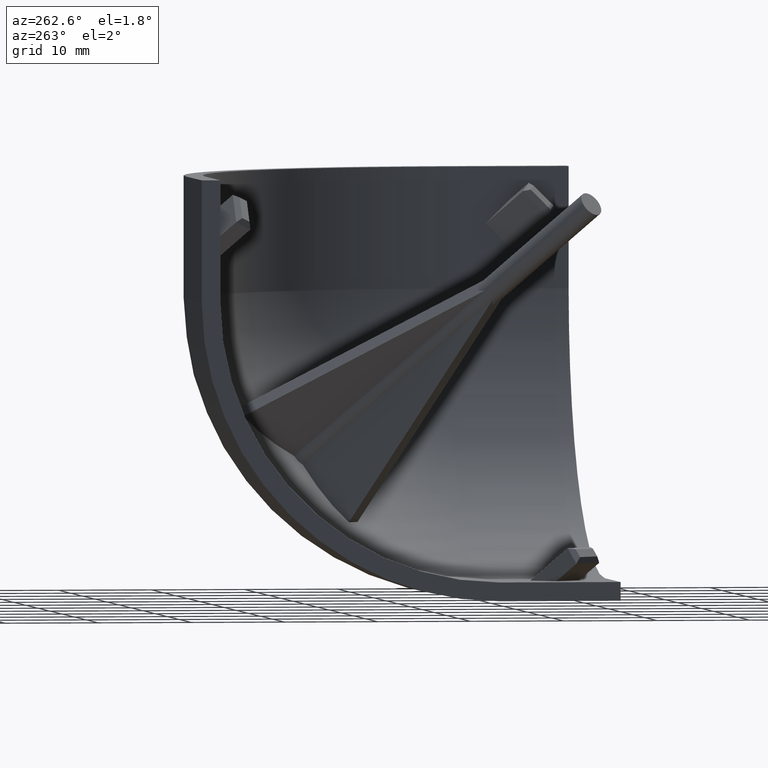
[diagram: clean part render]
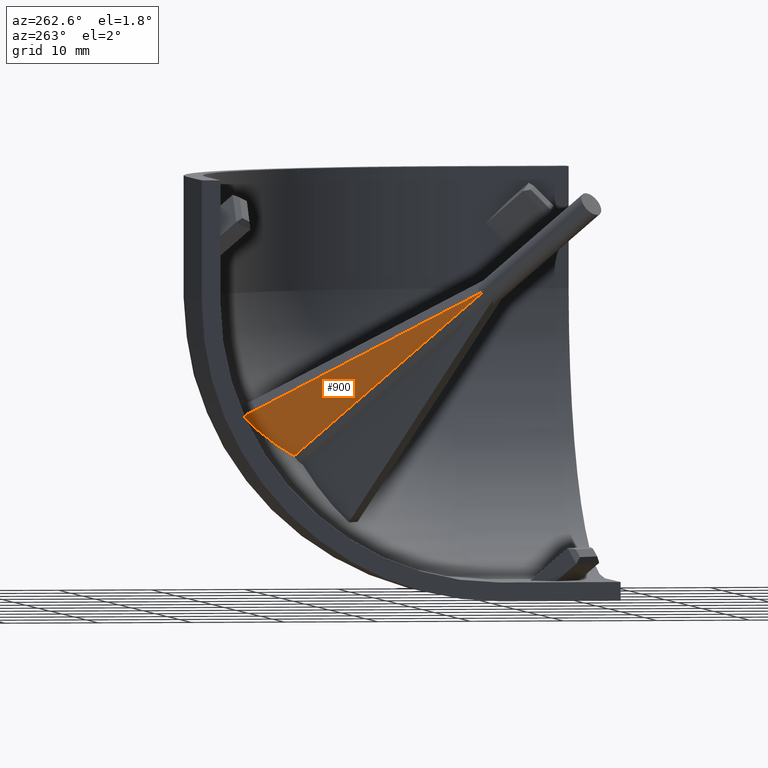
[diagram: same view with one face highlighted and labeled with its STEP entity id]
A machine part, auxiliary view. The second image highlights one B-rep face of the part: STEP entity #900.
In plain terms, the highlighted planar face has unit normal (0.7071, -0, 0.7071).
Its self-contained STEP definition (entity closure, byte-faithful):
#30=PLANE('',#985);
#72=LINE('',#1307,#171);
#115=LINE('',#1437,#214);
#171=VECTOR('',#1036,31.3487743130594);
#214=VECTOR('',#1167,30.9555790759953);
#293=FACE_OUTER_BOUND('',#353,.T.);
#353=EDGE_LOOP('',(#748,#749,#750));
#393=CIRCLE('',#947,29.9906235346983);
#419=VERTEX_POINT('',#1304);
#420=VERTEX_POINT('',#1306);
#427=VERTEX_POINT('',#1322);
#498=EDGE_CURVE('',#419,#420,#72,.T.);
#506=EDGE_CURVE('',#427,#420,#393,.T.);
#563=EDGE_CURVE('',#419,#427,#115,.T.);
#748=ORIENTED_EDGE('',*,*,#563,.T.);
#749=ORIENTED_EDGE('',*,*,#506,.T.);
#750=ORIENTED_EDGE('',*,*,#498,.F.);
#900=ADVANCED_FACE('',(#293),#30,.F.);
#947=AXIS2_PLACEMENT_3D('',#1323,#1052,#1053);
#985=AXIS2_PLACEMENT_3D('',#1440,#1171,#1172);
#1036=DIRECTION('',(0.577350269189624,0.577350269189624,-0.57735026918963));
#1052=DIRECTION('center_axis',(-0.707106781186556,2.74615064022129E-15,
-0.707106781186539));
#1053=DIRECTION('ref_axis',(0.707106781186539,-1.06429637653395E-14,-0.707106781186556));
#1167=DIRECTION('',(0.442898768224956,0.779539198635724,-0.442898768224963));
#1171=DIRECTION('center_axis',(0.707106781186556,-2.74615064022129E-15,
0.707106781186539));
#1172=DIRECTION('ref_axis',(0.707106781186539,0.,-0.707106781186556));
#1304=CARTESIAN_POINT('',(11.1894699051097,13.1676432145567,-12.2501300768898));
#1306=CARTESIAN_POINT('',(29.2886931935194,31.2668665029663,-30.3493533652995));
#1307=CARTESIAN_POINT('',(11.1894699051098,13.1676432145567,-12.2501300768897));
#1322=CARTESIAN_POINT('',(24.8996577475583,37.2987305207628,-25.9603179193386));
#1323=CARTESIAN_POINT('Origin',(12.46966991411,13.,-13.53033008589));
#1437=CARTESIAN_POINT('',(11.1894699051097,13.1676432145566,-12.2501300768898));
#1440=CARTESIAN_POINT('Origin',(42.7720274511122,29.7397525875469,-43.8326876228925));